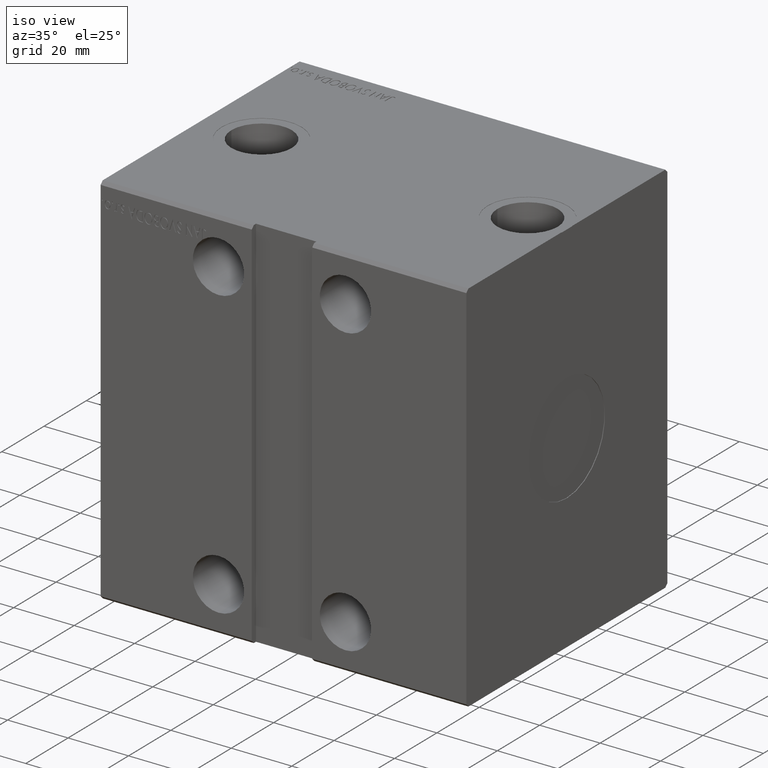
[diagram: clean part render]
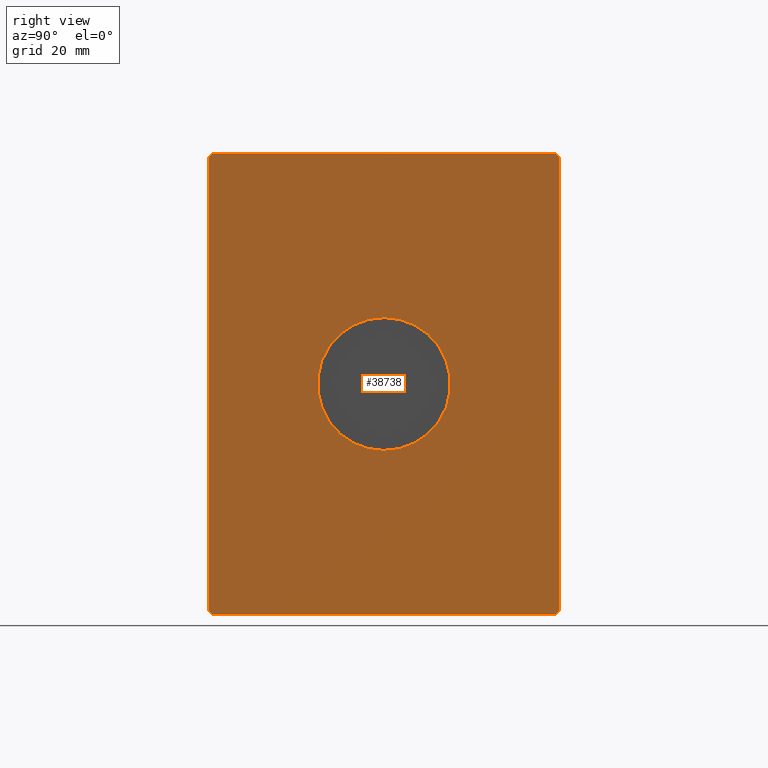
[diagram: tour spotlight — one face highlighted and labeled with its STEP entity id]
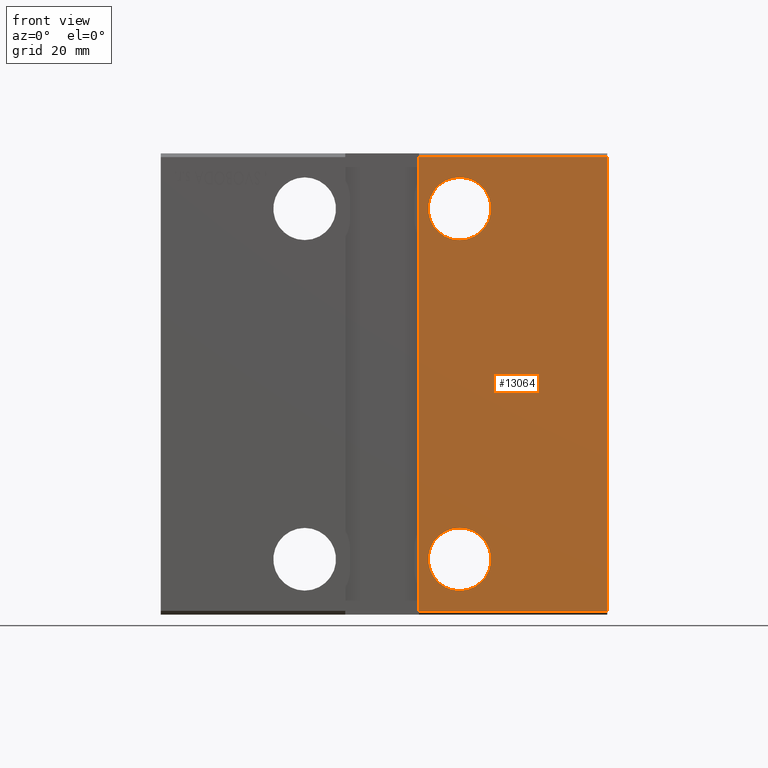
[diagram: tour spotlight — one face highlighted and labeled with its STEP entity id]
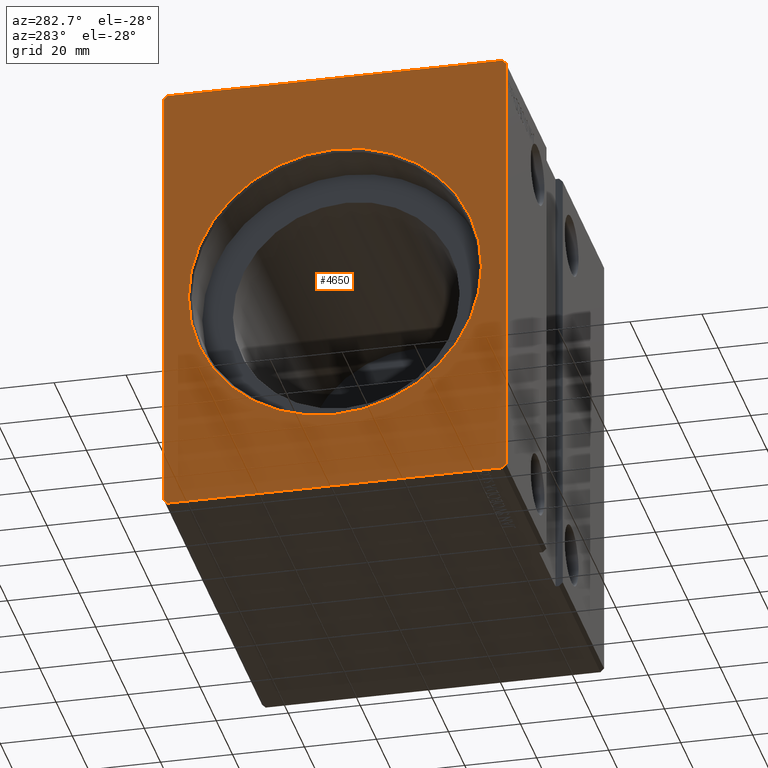
[diagram: tour spotlight — one face highlighted and labeled with its STEP entity id]
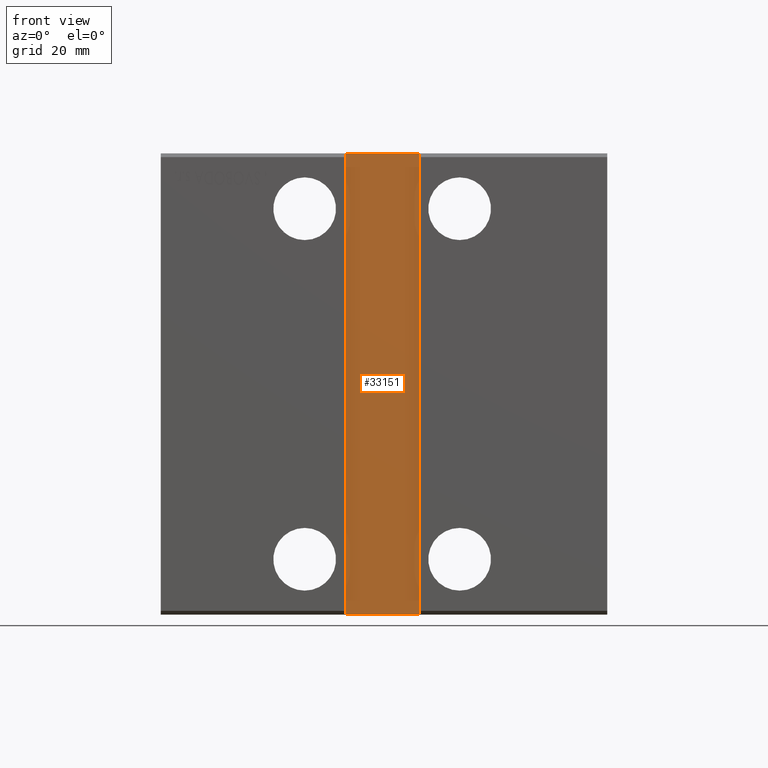
[diagram: tour spotlight — one face highlighted and labeled with its STEP entity id]
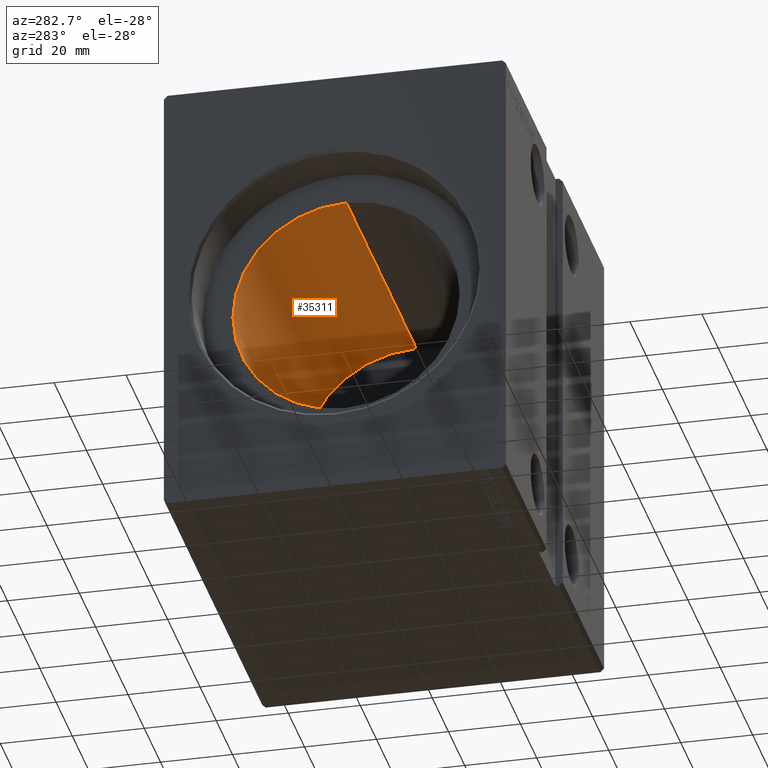
[diagram: tour spotlight — one face highlighted and labeled with its STEP entity id]
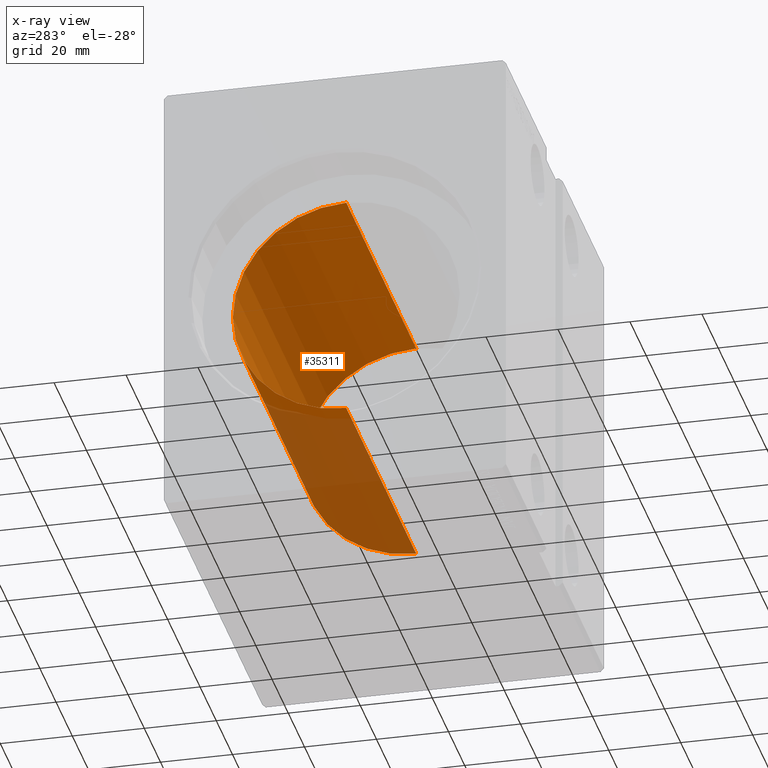
[diagram: x-ray of the same camera — body ghosted, this tour face saturated]
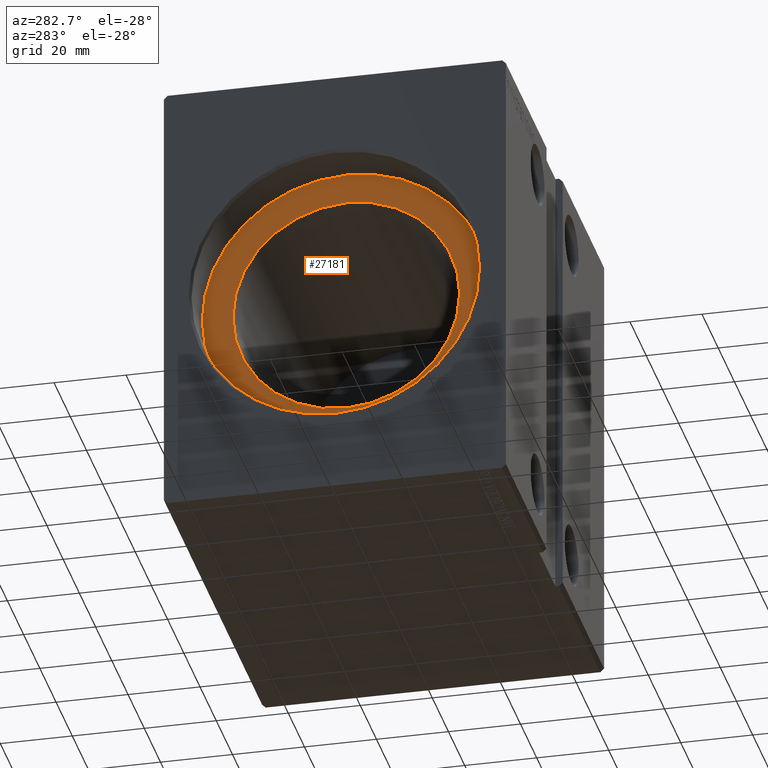
[diagram: tour spotlight — one face highlighted and labeled with its STEP entity id]
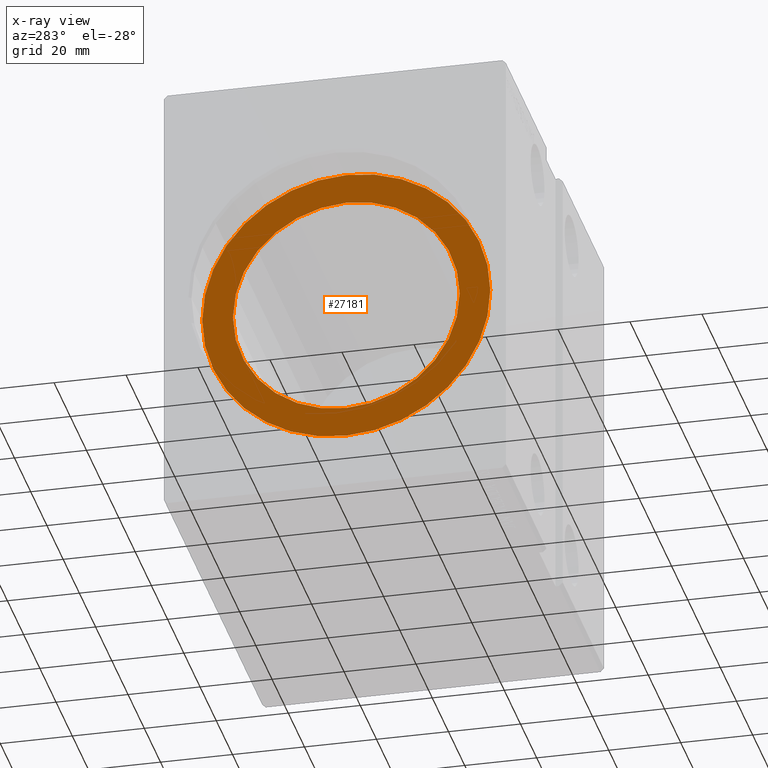
[diagram: x-ray of the same camera — body ghosted, this tour face saturated]
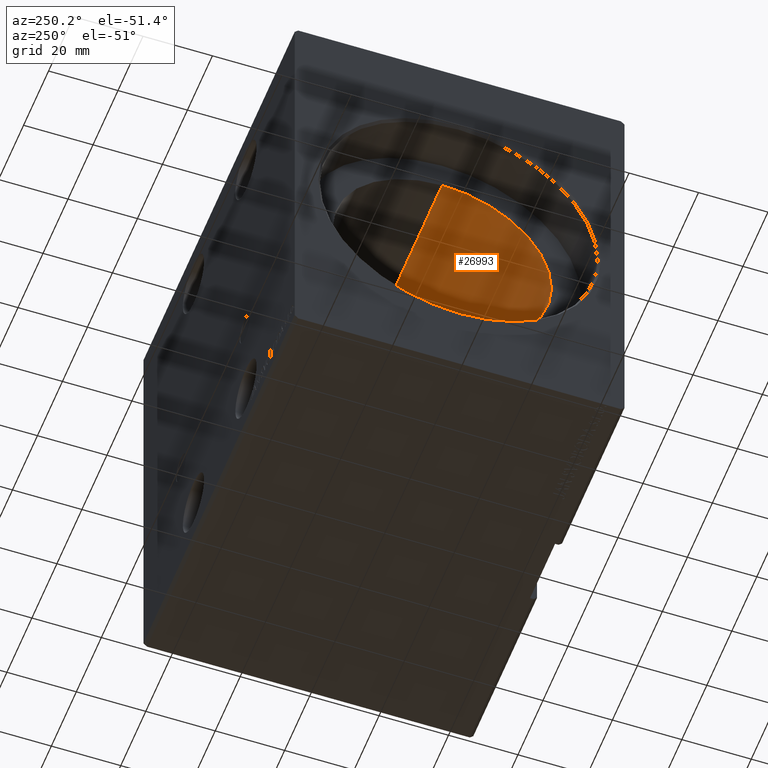
[diagram: tour spotlight — one face highlighted and labeled with its STEP entity id]
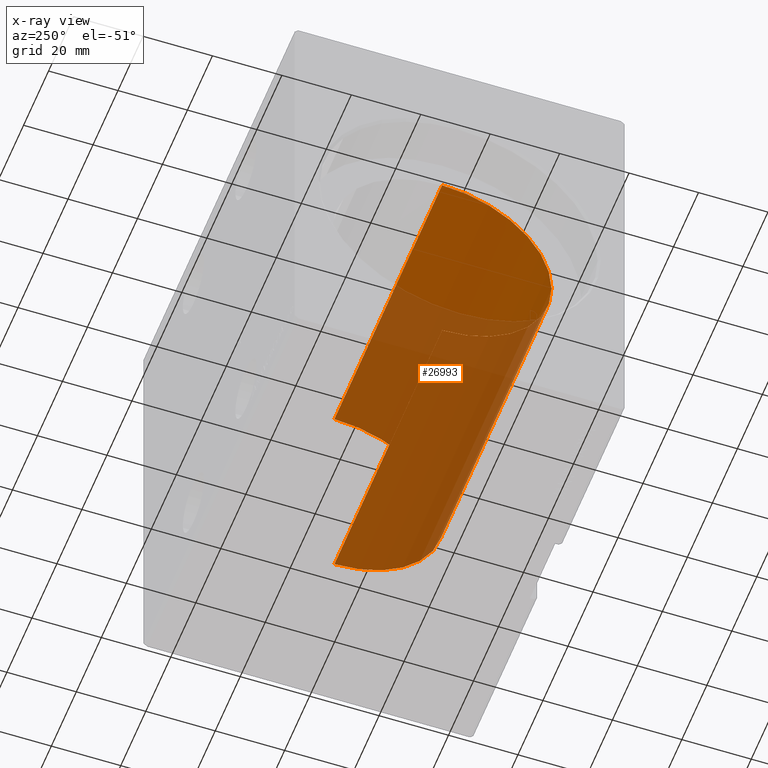
[diagram: x-ray of the same camera — body ghosted, this tour face saturated]
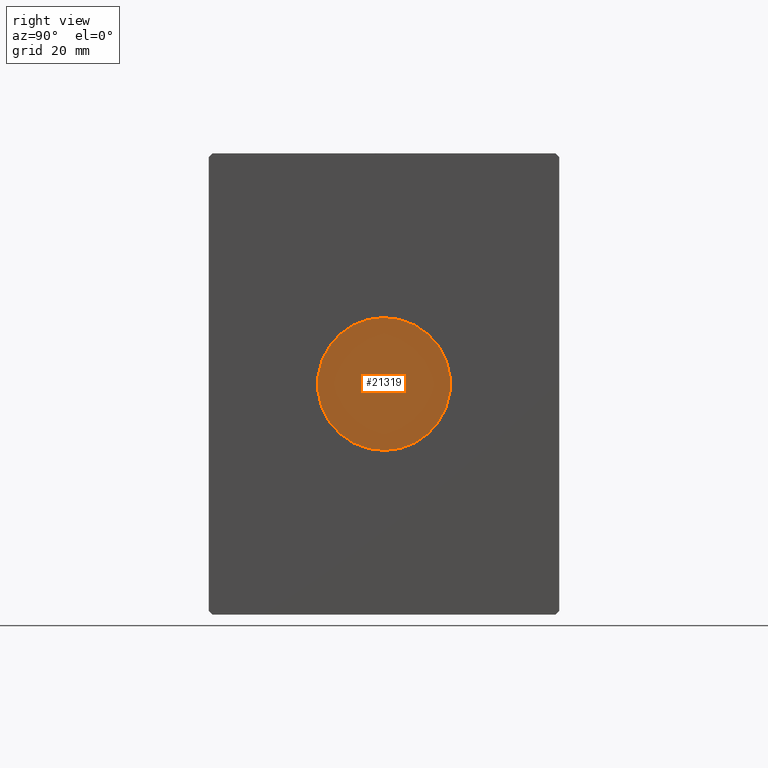
[diagram: tour spotlight — one face highlighted and labeled with its STEP entity id]
A machine part: a face-by-face anatomy tour. The part has 804 B-rep faces; the first image is the clean iso view, then the 8 largest visible faces are spotlighted one at a time (largest first), each with its STEP entity span.

Face 1 — right view, entity #38738. In plain terms, the highlighted planar face has unit normal (1, 0, 0).
Definition (entity closure, byte-faithful):
#110 = CARTESIAN_POINT ( 'NONE',  ( 121.0000000000000000, -46.50000000000001421, 62.49999999999997868 ) ) ;
#1026 = DIRECTION ( 'NONE',  ( 0.000000000000000000, 0.000000000000000000, -1.000000000000000000 ) ) ;
#1086 = DIRECTION ( 'NONE',  ( 0.000000000000000000, -1.000000000000000000, -7.461176240760460157E-17 ) ) ;
#1283 = CARTESIAN_POINT ( 'NONE',  ( 121.0000000000000000, 47.50000000000001421, -61.50000000000001421 ) ) ;
#1335 = VECTOR ( 'NONE', #30555, 1000.000000000000000 ) ;
#1590 = CARTESIAN_POINT ( 'NONE',  ( 121.0000000000000000, 2.561737691489917257, 62.49999999999998579 ) ) ;
#1706 = DIRECTION ( 'NONE',  ( 0.000000000000000000, 0.7071067811865574537, 0.7071067811865376918 ) ) ;
#2296 = VECTOR ( 'NONE', #6655, 1000.000000000000000 ) ;
#2297 = ORIENTED_EDGE ( 'NONE', *, *, #19777, .F. ) ;
#2903 = CIRCLE ( 'NONE', #40918, 18.00000000000000000 ) ;
#3867 = CARTESIAN_POINT ( 'NONE',  ( 121.0000000000000000, 46.50000000000000000, 62.49999999999998579 ) ) ;
#3918 = DIRECTION ( 'NONE',  ( 0.000000000000000000, -0.7071067811865474617, 0.7071067811865474617 ) ) ;
#4245 = LINE ( 'NONE', #25784, #21294 ) ;
#5111 = CARTESIAN_POINT ( 'NONE',  ( 121.0000000000000000, 0.000000000000000000, 0.000000000000000000 ) ) ;
#5454 = VERTEX_POINT ( 'NONE', #16405 ) ;
#5663 = EDGE_LOOP ( 'NONE', ( #40835, #22768, #2297, #34843, #36093, #14464, #9597, #36715, #29379, #31179, #16836, #23288 ) ) ;
#6655 = DIRECTION ( 'NONE',  ( 0.000000000000000000, -1.000000000000000000, -7.461176240760460157E-17 ) ) ;
#7667 = DIRECTION ( 'NONE',  ( 1.000000000000000000, 0.000000000000000000, 0.000000000000000000 ) ) ;
#8058 = DIRECTION ( 'NONE',  ( 1.000000000000000000, 0.000000000000000000, 0.000000000000000000 ) ) ;
#8179 = DIRECTION ( 'NONE',  ( 0.000000000000000000, -1.128275431529630729E-16, 1.000000000000000000 ) ) ;
#8548 = ORIENTED_EDGE ( 'NONE', *, *, #15593, .F. ) ;
#8646 = VERTEX_POINT ( 'NONE', #13065 ) ;
#9199 = ORIENTED_EDGE ( 'NONE', *, *, #38813, .F. ) ;
#9268 = VERTEX_POINT ( 'NONE', #27742 ) ;
#9597 = ORIENTED_EDGE ( 'NONE', *, *, #38142, .T. ) ;
#10115 = VERTEX_POINT ( 'NONE', #40345 ) ;
#10365 = CARTESIAN_POINT ( 'NONE',  ( 121.0000000000000000, -47.50000000000001421, 61.49999999999997868 ) ) ;
#10386 = CARTESIAN_POINT ( 'NONE',  ( 121.0000000000000000, -47.49999999999999289, -61.50000000000001421 ) ) ;
#10604 = VECTOR ( 'NONE', #1706, 999.9999999999998863 ) ;
#10820 = DIRECTION ( 'NONE',  ( 1.000000000000000000, 0.000000000000000000, 0.000000000000000000 ) ) ;
#11005 = VERTEX_POINT ( 'NONE', #11891 ) ;
#11891 = CARTESIAN_POINT ( 'NONE',  ( 121.0000000000000000, -47.50000000000001421, 61.49999999999997868 ) ) ;
#12000 = EDGE_CURVE ( 'NONE', #11005, #24139, #13349, .T. ) ;
#12202 = VERTEX_POINT ( 'NONE', #35606 ) ;
#12645 = DIRECTION ( 'NONE',  ( -0.000000000000000000, -0.000000000000000000, 1.000000000000000000 ) ) ;
#12847 = VECTOR ( 'NONE', #3918, 1000.000000000000114 ) ;
#12878 = AXIS2_PLACEMENT_3D ( 'NONE', #5111, #7667, #34427 ) ;
#13049 = CARTESIAN_POINT ( 'NONE',  ( 121.0000000000000000, -46.50000000000000000, -62.50000000000001421 ) ) ;
#13065 = CARTESIAN_POINT ( 'NONE',  ( 121.0000000000000000, -2.561737691489925695, 62.49999999999998579 ) ) ;
#13164 = LINE ( 'NONE', #10386, #39203 ) ;
#13349 = LINE ( 'NONE', #10365, #33178 ) ;
#13938 = LINE ( 'NONE', #28776, #18918 ) ;
#14464 = ORIENTED_EDGE ( 'NONE', *, *, #12000, .T. ) ;
#14502 = CARTESIAN_POINT ( 'NONE',  ( 121.0000000000000000, 47.50000000000000000, 61.49999999999998579 ) ) ;
#15307 = EDGE_CURVE ( 'NONE', #10115, #15404, #33512, .T. ) ;
#15404 = VERTEX_POINT ( 'NONE', #28798 ) ;
#15593 = EDGE_CURVE ( 'NONE', #9268, #5454, #40016, .T. ) ;
#16405 = CARTESIAN_POINT ( 'NONE',  ( 121.0000000000000000, 0.000000000000000000, -18.00000000000000000 ) ) ;
#16836 = ORIENTED_EDGE ( 'NONE', *, *, #18162, .T. ) ;
#16935 = EDGE_CURVE ( 'NONE', #10115, #24625, #13938, .T. ) ;
#18033 = CARTESIAN_POINT ( 'NONE',  ( 121.0000000000000000, 0.000000000000000000, 0.000000000000000000 ) ) ;
#18162 = EDGE_CURVE ( 'NONE', #21937, #12202, #20062, .T. ) ;
#18918 = VECTOR ( 'NONE', #12645, 1000.000000000000000 ) ;
#19127 = VERTEX_POINT ( 'NONE', #13049 ) ;
#19741 = CARTESIAN_POINT ( 'NONE',  ( 121.0000000000000000, 0.000000000000000000, 0.000000000000000000 ) ) ;
#19777 = EDGE_CURVE ( 'NONE', #8646, #15404, #36281, .T. ) ;
#20012 = LINE ( 'NONE', #3867, #2296 ) ;
#20062 = LINE ( 'NONE', #25823, #12847 ) ;
#20128 = CARTESIAN_POINT ( 'NONE',  ( 121.0000000000000000, -2.561737691489925695, 62.39999999999998437 ) ) ;
#20761 = EDGE_CURVE ( 'NONE', #8646, #26437, #25139, .T. ) ;
#21178 = CARTESIAN_POINT ( 'NONE',  ( 121.0000000000000000, 0.000000000000000000, 62.39999999999998437 ) ) ;
#21294 = VECTOR ( 'NONE', #38755, 1000.000000000000000 ) ;
#21937 = VERTEX_POINT ( 'NONE', #14502 ) ;
#22768 = ORIENTED_EDGE ( 'NONE', *, *, #15307, .T. ) ;
#23288 = ORIENTED_EDGE ( 'NONE', *, *, #41961, .T. ) ;
#24053 = CARTESIAN_POINT ( 'NONE',  ( 121.0000000000000000, -47.49999999999999289, -61.50000000000001421 ) ) ;
#24139 = VERTEX_POINT ( 'NONE', #24053 ) ;
#24625 = VERTEX_POINT ( 'NONE', #1590 ) ;
#25139 = LINE ( 'NONE', #38111, #34620 ) ;
#25784 = CARTESIAN_POINT ( 'NONE',  ( 121.0000000000000000, -46.50000000000000000, -62.50000000000001421 ) ) ;
#25823 = CARTESIAN_POINT ( 'NONE',  ( 121.0000000000000000, 47.50000000000000000, 61.49999999999998579 ) ) ;
#26437 = VERTEX_POINT ( 'NONE', #110 ) ;
#26529 = FACE_BOUND ( 'NONE', #31367, .T. ) ;
#27069 = LINE ( 'NONE', #30898, #42008 ) ;
#27742 = CARTESIAN_POINT ( 'NONE',  ( 121.0000000000000000, 2.204364238465235428E-15, 18.00000000000000000 ) ) ;
#28352 = CARTESIAN_POINT ( 'NONE',  ( 121.0000000000000000, -46.50000000000001421, 62.49999999999997868 ) ) ;
#28473 = VECTOR ( 'NONE', #40519, 1000.000000000000000 ) ;
#28527 = EDGE_CURVE ( 'NONE', #33351, #21937, #27069, .T. ) ;
#28776 = CARTESIAN_POINT ( 'NONE',  ( 121.0000000000000000, 2.561737691489917257, 62.39999999999998437 ) ) ;
#28798 = CARTESIAN_POINT ( 'NONE',  ( 121.0000000000000000, -2.561737691489925695, 62.39999999999998437 ) ) ;
#29379 = ORIENTED_EDGE ( 'NONE', *, *, #33386, .T. ) ;
#29647 = CARTESIAN_POINT ( 'NONE',  ( 121.0000000000000000, 46.50000000000000000, -62.50000000000000000 ) ) ;
#30555 = DIRECTION ( 'NONE',  ( 0.000000000000000000, 0.000000000000000000, -1.000000000000000000 ) ) ;
#30898 = CARTESIAN_POINT ( 'NONE',  ( 121.0000000000000000, 47.50000000000001421, -61.50000000000001421 ) ) ;
#30993 = DIRECTION ( 'NONE',  ( 0.000000000000000000, 0.000000000000000000, -1.000000000000000000 ) ) ;
#31179 = ORIENTED_EDGE ( 'NONE', *, *, #28527, .T. ) ;
#31367 = EDGE_LOOP ( 'NONE', ( #9199, #8548 ) ) ;
#31778 = VERTEX_POINT ( 'NONE', #29647 ) ;
#33178 = VECTOR ( 'NONE', #41659, 1000.000000000000000 ) ;
#33351 = VERTEX_POINT ( 'NONE', #1283 ) ;
#33386 = EDGE_CURVE ( 'NONE', #31778, #33351, #40174, .T. ) ;
#33512 = LINE ( 'NONE', #21178, #28473 ) ;
#34427 = DIRECTION ( 'NONE',  ( 0.000000000000000000, 0.000000000000000000, -1.000000000000000000 ) ) ;
#34620 = VECTOR ( 'NONE', #1086, 1000.000000000000000 ) ;
#34843 = ORIENTED_EDGE ( 'NONE', *, *, #20761, .T. ) ;
#35606 = CARTESIAN_POINT ( 'NONE',  ( 121.0000000000000000, 46.50000000000000000, 62.49999999999998579 ) ) ;
#35893 = FACE_OUTER_BOUND ( 'NONE', #5663, .T. ) ;
#36093 = ORIENTED_EDGE ( 'NONE', *, *, #36622, .T. ) ;
#36281 = LINE ( 'NONE', #20128, #1335 ) ;
#36514 = DIRECTION ( 'NONE',  ( 0.000000000000000000, 0.7071067811865451302, -0.7071067811865500152 ) ) ;
#36622 = EDGE_CURVE ( 'NONE', #26437, #11005, #41932, .T. ) ;
#36715 = ORIENTED_EDGE ( 'NONE', *, *, #41324, .T. ) ;
#36983 = CARTESIAN_POINT ( 'NONE',  ( 121.0000000000000000, 46.50000000000000000, -62.50000000000000000 ) ) ;
#37831 = VECTOR ( 'NONE', #41318, 1000.000000000000114 ) ;
#38111 = CARTESIAN_POINT ( 'NONE',  ( 121.0000000000000000, 46.50000000000000000, 62.49999999999998579 ) ) ;
#38142 = EDGE_CURVE ( 'NONE', #24139, #19127, #13164, .T. ) ;
#38738 = ADVANCED_FACE ( 'NONE', ( #26529, #35893 ), #39504, .T. ) ;
#38755 = DIRECTION ( 'NONE',  ( 0.000000000000000000, 1.000000000000000000, 1.492235248152092278E-16 ) ) ;
#38813 = EDGE_CURVE ( 'NONE', #5454, #9268, #2903, .T. ) ;
#39203 = VECTOR ( 'NONE', #36514, 1000.000000000000114 ) ;
#39504 = PLANE ( 'NONE',  #41574 ) ;
#40016 = CIRCLE ( 'NONE', #12878, 18.00000000000000000 ) ;
#40174 = LINE ( 'NONE', #36983, #10604 ) ;
#40345 = CARTESIAN_POINT ( 'NONE',  ( 121.0000000000000000, 2.561737691489917257, 62.39999999999998437 ) ) ;
#40519 = DIRECTION ( 'NONE',  ( 0.000000000000000000, -1.000000000000000000, 0.000000000000000000 ) ) ;
#40835 = ORIENTED_EDGE ( 'NONE', *, *, #16935, .F. ) ;
#40918 = AXIS2_PLACEMENT_3D ( 'NONE', #18033, #8058, #30993 ) ;
#41318 = DIRECTION ( 'NONE',  ( 0.000000000000000000, -0.7071067811865474617, -0.7071067811865474617 ) ) ;
#41324 = EDGE_CURVE ( 'NONE', #19127, #31778, #4245, .T. ) ;
#41574 = AXIS2_PLACEMENT_3D ( 'NONE', #19741, #10820, #1026 ) ;
#41659 = DIRECTION ( 'NONE',  ( 0.000000000000000000, 1.692413147294445970E-16, -1.000000000000000000 ) ) ;
#41932 = LINE ( 'NONE', #28352, #37831 ) ;
#41961 = EDGE_CURVE ( 'NONE', #12202, #24625, #20012, .T. ) ;
#42008 = VECTOR ( 'NONE', #8179, 1000.000000000000000 ) ;

Face 2 — front view, entity #13064. In plain terms, the highlighted planar face has unit normal (-0, 1, 0).
Definition (entity closure, byte-faithful):
#480 = AXIS2_PLACEMENT_3D ( 'NONE', #9188, #32129, #6418 ) ;
#1773 = ORIENTED_EDGE ( 'NONE', *, *, #19595, .T. ) ;
#2913 = CARTESIAN_POINT ( 'NONE',  ( 81.00000000000000000, -47.50000000000002132, 47.49999999999999289 ) ) ;
#5350 = DIRECTION ( 'NONE',  ( 0.000000000000000000, 0.000000000000000000, 1.000000000000000000 ) ) ;
#5605 = VERTEX_POINT ( 'NONE', #29971 ) ;
#5903 = DIRECTION ( 'NONE',  ( 0.000000000000000000, -1.000000000000000000, -1.692413147294446216E-16 ) ) ;
#6103 = CARTESIAN_POINT ( 'NONE',  ( 81.00000000000001421, -47.50000000000000711, -47.50000000000000711 ) ) ;
#6415 = EDGE_CURVE ( 'NONE', #6445, #38435, #21503, .T. ) ;
#6418 = DIRECTION ( 'NONE',  ( 0.000000000000000000, 0.000000000000000000, 1.000000000000000000 ) ) ;
#6445 = VERTEX_POINT ( 'NONE', #15782 ) ;
#7589 = EDGE_CURVE ( 'NONE', #38435, #6445, #22879, .T. ) ;
#7661 = ORIENTED_EDGE ( 'NONE', *, *, #7589, .T. ) ;
#8477 = ORIENTED_EDGE ( 'NONE', *, *, #6415, .T. ) ;
#9188 = CARTESIAN_POINT ( 'NONE',  ( 81.00000000000001421, -47.50000000000000711, -47.50000000000000711 ) ) ;
#9744 = DIRECTION ( 'NONE',  ( -1.000000000000000000, -0.000000000000000000, -0.000000000000000000 ) ) ;
#10135 = AXIS2_PLACEMENT_3D ( 'NONE', #24358, #36891, #37328 ) ;
#10365 = CARTESIAN_POINT ( 'NONE',  ( 121.0000000000000000, -47.50000000000001421, 61.49999999999997868 ) ) ;
#10770 = AXIS2_PLACEMENT_3D ( 'NONE', #2913, #5903, #31409 ) ;
#11005 = VERTEX_POINT ( 'NONE', #11891 ) ;
#11243 = DIRECTION ( 'NONE',  ( -1.110223024625156540E-16, -0.000000000000000000, 1.000000000000000000 ) ) ;
#11891 = CARTESIAN_POINT ( 'NONE',  ( 121.0000000000000000, -47.50000000000001421, 61.49999999999997868 ) ) ;
#12000 = EDGE_CURVE ( 'NONE', #11005, #24139, #13349, .T. ) ;
#12151 = VECTOR ( 'NONE', #11243, 1000.000000000000000 ) ;
#12529 = CARTESIAN_POINT ( 'NONE',  ( 121.0000000000000000, -47.50000000000001421, 61.49999999999997868 ) ) ;
#12757 = EDGE_CURVE ( 'NONE', #33070, #5605, #40336, .T. ) ;
#12951 = EDGE_CURVE ( 'NONE', #39564, #29118, #29080, .T. ) ;
#13064 = ADVANCED_FACE ( 'NONE', ( #24133, #23927, #40717 ), #30301, .F. ) ;
#13136 = CIRCLE ( 'NONE', #24664, 8.500000000000000000 ) ;
#13349 = LINE ( 'NONE', #10365, #33178 ) ;
#13426 = EDGE_LOOP ( 'NONE', ( #7661, #8477 ) ) ;
#14196 = DIRECTION ( 'NONE',  ( -1.000000000000000000, -0.000000000000000000, -0.000000000000000000 ) ) ;
#14534 = CARTESIAN_POINT ( 'NONE',  ( 81.00000000000001421, -47.50000000000000711, -56.00000000000001421 ) ) ;
#14623 = CARTESIAN_POINT ( 'NONE',  ( 121.0000000000000000, -47.49999999999999289, -61.50000000000001421 ) ) ;
#15782 = CARTESIAN_POINT ( 'NONE',  ( 81.00000000000001421, -47.50000000000000711, -39.00000000000000000 ) ) ;
#19057 = DIRECTION ( 'NONE',  ( -0.000000000000000000, 1.000000000000000000, 1.692413147294446216E-16 ) ) ;
#19103 = LINE ( 'NONE', #12529, #25740 ) ;
#19526 = ORIENTED_EDGE ( 'NONE', *, *, #12951, .F. ) ;
#19595 = EDGE_CURVE ( 'NONE', #11005, #5605, #19103, .T. ) ;
#20279 = CARTESIAN_POINT ( 'NONE',  ( 81.00000000000000000, -47.50000000000002132, 38.99999999999999289 ) ) ;
#20436 = CARTESIAN_POINT ( 'NONE',  ( 81.00000000000000000, -47.50000000000002132, 47.49999999999999289 ) ) ;
#21503 = CIRCLE ( 'NONE', #480, 8.500000000000007105 ) ;
#22336 = CARTESIAN_POINT ( 'NONE',  ( 70.00000000000001421, -47.50000000000000711, -61.50000000000002132 ) ) ;
#22879 = CIRCLE ( 'NONE', #41221, 8.500000000000007105 ) ;
#23139 = CARTESIAN_POINT ( 'NONE',  ( 81.00000000000000000, -47.50000000000002132, 55.99999999999999289 ) ) ;
#23927 = FACE_OUTER_BOUND ( 'NONE', #37023, .T. ) ;
#24053 = CARTESIAN_POINT ( 'NONE',  ( 121.0000000000000000, -47.49999999999999289, -61.50000000000001421 ) ) ;
#24133 = FACE_BOUND ( 'NONE', #13426, .T. ) ;
#24139 = VERTEX_POINT ( 'NONE', #24053 ) ;
#24358 = CARTESIAN_POINT ( 'NONE',  ( 121.0000000000000000, -47.50000000000001421, 61.49999999999997868 ) ) ;
#24664 = AXIS2_PLACEMENT_3D ( 'NONE', #20436, #33404, #5350 ) ;
#25740 = VECTOR ( 'NONE', #9744, 1000.000000000000000 ) ;
#26926 = LINE ( 'NONE', #14623, #27744 ) ;
#27696 = ORIENTED_EDGE ( 'NONE', *, *, #12000, .F. ) ;
#27744 = VECTOR ( 'NONE', #14196, 1000.000000000000000 ) ;
#28313 = EDGE_CURVE ( 'NONE', #24139, #33070, #26926, .T. ) ;
#29080 = CIRCLE ( 'NONE', #10770, 8.500000000000000000 ) ;
#29118 = VERTEX_POINT ( 'NONE', #20279 ) ;
#29971 = CARTESIAN_POINT ( 'NONE',  ( 70.00000000000000000, -47.50000000000000711, 61.49999999999998579 ) ) ;
#30301 = PLANE ( 'NONE',  #10135 ) ;
#31409 = DIRECTION ( 'NONE',  ( 0.000000000000000000, 0.000000000000000000, 1.000000000000000000 ) ) ;
#32129 = DIRECTION ( 'NONE',  ( -0.000000000000000000, 1.000000000000000000, 1.692413147294446216E-16 ) ) ;
#32359 = ORIENTED_EDGE ( 'NONE', *, *, #28313, .F. ) ;
#32362 = EDGE_LOOP ( 'NONE', ( #39692, #19526 ) ) ;
#33070 = VERTEX_POINT ( 'NONE', #22336 ) ;
#33178 = VECTOR ( 'NONE', #41659, 1000.000000000000000 ) ;
#33404 = DIRECTION ( 'NONE',  ( 0.000000000000000000, -1.000000000000000000, -1.692413147294446216E-16 ) ) ;
#33615 = ORIENTED_EDGE ( 'NONE', *, *, #12757, .F. ) ;
#36891 = DIRECTION ( 'NONE',  ( -0.000000000000000000, 1.000000000000000000, 1.692413147294446216E-16 ) ) ;
#37023 = EDGE_LOOP ( 'NONE', ( #1773, #33615, #32359, #27696 ) ) ;
#37160 = CARTESIAN_POINT ( 'NONE',  ( 70.00000000000000000, -47.50000000000000711, 62.49999999999997868 ) ) ;
#37328 = DIRECTION ( 'NONE',  ( 0.000000000000000000, -1.692413147294446216E-16, 1.000000000000000000 ) ) ;
#38435 = VERTEX_POINT ( 'NONE', #14534 ) ;
#39009 = DIRECTION ( 'NONE',  ( 0.000000000000000000, 0.000000000000000000, 1.000000000000000000 ) ) ;
#39564 = VERTEX_POINT ( 'NONE', #23139 ) ;
#39692 = ORIENTED_EDGE ( 'NONE', *, *, #40091, .F. ) ;
#40091 = EDGE_CURVE ( 'NONE', #29118, #39564, #13136, .T. ) ;
#40336 = LINE ( 'NONE', #37160, #12151 ) ;
#40717 = FACE_BOUND ( 'NONE', #32362, .T. ) ;
#41221 = AXIS2_PLACEMENT_3D ( 'NONE', #6103, #19057, #39009 ) ;
#41659 = DIRECTION ( 'NONE',  ( 0.000000000000000000, 1.692413147294445970E-16, -1.000000000000000000 ) ) ;

Face 3 — auxiliary view, entity #4650. In plain terms, the highlighted planar face has unit normal (1, 0, 0).
Definition (entity closure, byte-faithful):
#330 = DIRECTION ( 'NONE',  ( 0.000000000000000000, 0.000000000000000000, -1.000000000000000000 ) ) ;
#527 = CARTESIAN_POINT ( 'NONE',  ( 0.000000000000000000, -46.50000000000001421, 62.49999999999997868 ) ) ;
#744 = DIRECTION ( 'NONE',  ( 1.000000000000000000, 0.000000000000000000, 0.000000000000000000 ) ) ;
#1265 = CARTESIAN_POINT ( 'NONE',  ( 0.000000000000000000, -47.49999999999999289, -61.50000000000001421 ) ) ;
#1851 = EDGE_CURVE ( 'NONE', #39531, #21292, #5405, .T. ) ;
#1878 = DIRECTION ( 'NONE',  ( 0.000000000000000000, 0.7071067811865451302, -0.7071067811865500152 ) ) ;
#2207 = CARTESIAN_POINT ( 'NONE',  ( 0.000000000000000000, 46.50000000000000000, -62.50000000000000000 ) ) ;
#2349 = ORIENTED_EDGE ( 'NONE', *, *, #3606, .T. ) ;
#2646 = CIRCLE ( 'NONE', #29773, 40.70000000000001705 ) ;
#3503 = ORIENTED_EDGE ( 'NONE', *, *, #11181, .F. ) ;
#3606 = EDGE_CURVE ( 'NONE', #30005, #12154, #36352, .T. ) ;
#3752 = DIRECTION ( 'NONE',  ( 0.000000000000000000, -0.7071067811865474617, -0.7071067811865474617 ) ) ;
#4341 = EDGE_CURVE ( 'NONE', #39943, #24356, #8447, .T. ) ;
#4457 = DIRECTION ( 'NONE',  ( 0.000000000000000000, -0.7071067811865474617, 0.7071067811865474617 ) ) ;
#4650 = ADVANCED_FACE ( 'NONE', ( #40063, #17318 ), #29858, .F. ) ;
#5025 = VECTOR ( 'NONE', #3752, 1000.000000000000114 ) ;
#5405 = LINE ( 'NONE', #2207, #7155 ) ;
#5862 = AXIS2_PLACEMENT_3D ( 'NONE', #14608, #34572, #17999 ) ;
#6224 = ORIENTED_EDGE ( 'NONE', *, *, #41285, .F. ) ;
#6928 = DIRECTION ( 'NONE',  ( 1.000000000000000000, 0.000000000000000000, 0.000000000000000000 ) ) ;
#7155 = VECTOR ( 'NONE', #15183, 999.9999999999998863 ) ;
#7601 = LINE ( 'NONE', #11642, #31797 ) ;
#7835 = LINE ( 'NONE', #20785, #24895 ) ;
#8282 = DIRECTION ( 'NONE',  ( 0.000000000000000000, -1.000000000000000000, -7.461176240760460157E-17 ) ) ;
#8447 = LINE ( 'NONE', #14617, #15393 ) ;
#9258 = AXIS2_PLACEMENT_3D ( 'NONE', #30275, #744, #13721 ) ;
#11181 = EDGE_CURVE ( 'NONE', #21292, #32029, #7601, .T. ) ;
#11642 = CARTESIAN_POINT ( 'NONE',  ( 0.000000000000000000, 47.50000000000001421, -61.50000000000001421 ) ) ;
#12154 = VERTEX_POINT ( 'NONE', #32014 ) ;
#12204 = CARTESIAN_POINT ( 'NONE',  ( 0.000000000000000000, -46.50000000000000000, -62.50000000000001421 ) ) ;
#12289 = EDGE_CURVE ( 'NONE', #12154, #30005, #2646, .T. ) ;
#13255 = VERTEX_POINT ( 'NONE', #38980 ) ;
#13256 = CARTESIAN_POINT ( 'NONE',  ( 0.000000000000000000, 47.50000000000000000, 61.49999999999998579 ) ) ;
#13721 = DIRECTION ( 'NONE',  ( 0.000000000000000000, 0.000000000000000000, -1.000000000000000000 ) ) ;
#13871 = CARTESIAN_POINT ( 'NONE',  ( 0.000000000000000000, 4.984312472529728892E-15, -40.70000000000001705 ) ) ;
#13942 = ORIENTED_EDGE ( 'NONE', *, *, #4341, .F. ) ;
#14608 = CARTESIAN_POINT ( 'NONE',  ( 0.000000000000000000, 0.000000000000000000, 0.000000000000000000 ) ) ;
#14617 = CARTESIAN_POINT ( 'NONE',  ( 0.000000000000000000, -47.50000000000001421, 61.49999999999997868 ) ) ;
#14941 = EDGE_LOOP ( 'NONE', ( #6224, #3503, #15402, #38270, #17006, #13942, #17883, #41230 ) ) ;
#15183 = DIRECTION ( 'NONE',  ( 0.000000000000000000, 0.7071067811865574537, 0.7071067811865376918 ) ) ;
#15393 = VECTOR ( 'NONE', #40529, 1000.000000000000000 ) ;
#15402 = ORIENTED_EDGE ( 'NONE', *, *, #1851, .F. ) ;
#15872 = VECTOR ( 'NONE', #4457, 1000.000000000000114 ) ;
#16443 = LINE ( 'NONE', #35762, #15872 ) ;
#17006 = ORIENTED_EDGE ( 'NONE', *, *, #34771, .F. ) ;
#17318 = FACE_OUTER_BOUND ( 'NONE', #14941, .T. ) ;
#17356 = LINE ( 'NONE', #33723, #5025 ) ;
#17664 = VECTOR ( 'NONE', #27910, 1000.000000000000000 ) ;
#17883 = ORIENTED_EDGE ( 'NONE', *, *, #23490, .F. ) ;
#17999 = DIRECTION ( 'NONE',  ( 0.000000000000000000, 0.000000000000000000, -1.000000000000000000 ) ) ;
#20301 = VECTOR ( 'NONE', #8282, 1000.000000000000000 ) ;
#20649 = EDGE_CURVE ( 'NONE', #21741, #39531, #37483, .T. ) ;
#20785 = CARTESIAN_POINT ( 'NONE',  ( 0.000000000000000000, -47.49999999999999289, -61.50000000000001421 ) ) ;
#21292 = VERTEX_POINT ( 'NONE', #22711 ) ;
#21741 = VERTEX_POINT ( 'NONE', #12204 ) ;
#22136 = ORIENTED_EDGE ( 'NONE', *, *, #12289, .T. ) ;
#22711 = CARTESIAN_POINT ( 'NONE',  ( 0.000000000000000000, 47.50000000000001421, -61.50000000000001421 ) ) ;
#23490 = EDGE_CURVE ( 'NONE', #29064, #39943, #17356, .T. ) ;
#24356 = VERTEX_POINT ( 'NONE', #1265 ) ;
#24895 = VECTOR ( 'NONE', #1878, 1000.000000000000114 ) ;
#26537 = CARTESIAN_POINT ( 'NONE',  ( 0.000000000000000000, 46.50000000000000000, -62.50000000000000000 ) ) ;
#27487 = CARTESIAN_POINT ( 'NONE',  ( 0.000000000000000000, -46.50000000000000000, -62.50000000000001421 ) ) ;
#27910 = DIRECTION ( 'NONE',  ( 0.000000000000000000, 1.000000000000000000, 1.492235248152092278E-16 ) ) ;
#28723 = EDGE_CURVE ( 'NONE', #13255, #29064, #34400, .T. ) ;
#29064 = VERTEX_POINT ( 'NONE', #527 ) ;
#29773 = AXIS2_PLACEMENT_3D ( 'NONE', #41976, #6928, #330 ) ;
#29858 = PLANE ( 'NONE',  #9258 ) ;
#30005 = VERTEX_POINT ( 'NONE', #13871 ) ;
#30275 = CARTESIAN_POINT ( 'NONE',  ( 0.000000000000000000, 0.000000000000000000, 0.000000000000000000 ) ) ;
#31797 = VECTOR ( 'NONE', #39884, 1000.000000000000000 ) ;
#32014 = CARTESIAN_POINT ( 'NONE',  ( 0.000000000000000000, 0.000000000000000000, 40.70000000000001705 ) ) ;
#32029 = VERTEX_POINT ( 'NONE', #13256 ) ;
#33723 = CARTESIAN_POINT ( 'NONE',  ( 0.000000000000000000, -46.50000000000001421, 62.49999999999997868 ) ) ;
#34400 = LINE ( 'NONE', #37592, #20301 ) ;
#34572 = DIRECTION ( 'NONE',  ( 1.000000000000000000, 0.000000000000000000, 0.000000000000000000 ) ) ;
#34771 = EDGE_CURVE ( 'NONE', #24356, #21741, #7835, .T. ) ;
#35762 = CARTESIAN_POINT ( 'NONE',  ( 0.000000000000000000, 47.50000000000000000, 61.49999999999998579 ) ) ;
#36352 = CIRCLE ( 'NONE', #5862, 40.70000000000001705 ) ;
#37483 = LINE ( 'NONE', #27487, #17664 ) ;
#37592 = CARTESIAN_POINT ( 'NONE',  ( 0.000000000000000000, 46.50000000000000000, 62.49999999999998579 ) ) ;
#38270 = ORIENTED_EDGE ( 'NONE', *, *, #20649, .F. ) ;
#38514 = EDGE_LOOP ( 'NONE', ( #22136, #2349 ) ) ;
#38980 = CARTESIAN_POINT ( 'NONE',  ( 0.000000000000000000, 46.50000000000000000, 62.49999999999998579 ) ) ;
#39531 = VERTEX_POINT ( 'NONE', #26537 ) ;
#39884 = DIRECTION ( 'NONE',  ( 0.000000000000000000, -1.128275431529630729E-16, 1.000000000000000000 ) ) ;
#39943 = VERTEX_POINT ( 'NONE', #41292 ) ;
#40063 = FACE_BOUND ( 'NONE', #38514, .T. ) ;
#40529 = DIRECTION ( 'NONE',  ( 0.000000000000000000, 1.692413147294445970E-16, -1.000000000000000000 ) ) ;
#41230 = ORIENTED_EDGE ( 'NONE', *, *, #28723, .F. ) ;
#41285 = EDGE_CURVE ( 'NONE', #32029, #13255, #16443, .T. ) ;
#41292 = CARTESIAN_POINT ( 'NONE',  ( 0.000000000000000000, -47.50000000000001421, 61.49999999999997868 ) ) ;
#41976 = CARTESIAN_POINT ( 'NONE',  ( 0.000000000000000000, 0.000000000000000000, 0.000000000000000000 ) ) ;

Face 4 — front view, entity #33151. In plain terms, the highlighted planar face has unit normal (0, -1, 0).
Definition (entity closure, byte-faithful):
#856 = DIRECTION ( 'NONE',  ( 0.000000000000000000, -1.000000000000000000, 0.000000000000000000 ) ) ;
#1514 = CARTESIAN_POINT ( 'NONE',  ( 50.00000000000000000, -45.50000000000000711, -62.50000000000002842 ) ) ;
#3468 = LINE ( 'NONE', #16444, #11522 ) ;
#3666 = DIRECTION ( 'NONE',  ( 1.110223024625156540E-16, 0.000000000000000000, -1.000000000000000000 ) ) ;
#4048 = DIRECTION ( 'NONE',  ( 0.000000000000000000, -0.000000000000000000, -1.000000000000000000 ) ) ;
#4682 = EDGE_LOOP ( 'NONE', ( #34816, #32497, #15266, #34578 ) ) ;
#4948 = LINE ( 'NONE', #11112, #21641 ) ;
#7924 = DIRECTION ( 'NONE',  ( 1.000000000000000000, 0.000000000000000000, 0.000000000000000000 ) ) ;
#9303 = VECTOR ( 'NONE', #28676, 1000.000000000000000 ) ;
#11112 = CARTESIAN_POINT ( 'NONE',  ( 50.00000000000000000, -45.50000000000000711, -62.50000000000002842 ) ) ;
#11522 = VECTOR ( 'NONE', #3666, 1000.000000000000000 ) ;
#15266 = ORIENTED_EDGE ( 'NONE', *, *, #19212, .T. ) ;
#16444 = CARTESIAN_POINT ( 'NONE',  ( 49.99999999999998579, -45.50000000000000711, 62.49999999999997868 ) ) ;
#18273 = VERTEX_POINT ( 'NONE', #31330 ) ;
#19212 = EDGE_CURVE ( 'NONE', #18273, #20910, #3468, .T. ) ;
#19359 = FACE_OUTER_BOUND ( 'NONE', #4682, .T. ) ;
#19893 = CARTESIAN_POINT ( 'NONE',  ( 70.00000000000000000, -45.50000000000000711, 62.49999999999997868 ) ) ;
#20910 = VERTEX_POINT ( 'NONE', #1514 ) ;
#21641 = VECTOR ( 'NONE', #7924, 1000.000000000000000 ) ;
#23264 = CARTESIAN_POINT ( 'NONE',  ( 49.99999999999998579, -45.50000000000000711, 62.49999999999997868 ) ) ;
#23909 = LINE ( 'NONE', #23264, #28677 ) ;
#27771 = EDGE_CURVE ( 'NONE', #20910, #40483, #4948, .T. ) ;
#27822 = CARTESIAN_POINT ( 'NONE',  ( 70.00000000000001421, -45.50000000000000711, -62.50000000000002842 ) ) ;
#28676 = DIRECTION ( 'NONE',  ( -1.110223024625156540E-16, -0.000000000000000000, 1.000000000000000000 ) ) ;
#28677 = VECTOR ( 'NONE', #29865, 1000.000000000000000 ) ;
#29759 = PLANE ( 'NONE',  #32986 ) ;
#29865 = DIRECTION ( 'NONE',  ( -1.000000000000000000, -0.000000000000000000, -0.000000000000000000 ) ) ;
#31330 = CARTESIAN_POINT ( 'NONE',  ( 49.99999999999998579, -45.50000000000000711, 62.49999999999997868 ) ) ;
#31450 = VERTEX_POINT ( 'NONE', #35452 ) ;
#32497 = ORIENTED_EDGE ( 'NONE', *, *, #38992, .T. ) ;
#32986 = AXIS2_PLACEMENT_3D ( 'NONE', #36340, #856, #4048 ) ;
#33151 = ADVANCED_FACE ( 'NONE', ( #19359 ), #29759, .T. ) ;
#34578 = ORIENTED_EDGE ( 'NONE', *, *, #27771, .T. ) ;
#34816 = ORIENTED_EDGE ( 'NONE', *, *, #35717, .T. ) ;
#35452 = CARTESIAN_POINT ( 'NONE',  ( 70.00000000000000000, -45.50000000000000711, 62.49999999999997868 ) ) ;
#35478 = LINE ( 'NONE', #19893, #9303 ) ;
#35717 = EDGE_CURVE ( 'NONE', #40483, #31450, #35478, .T. ) ;
#36340 = CARTESIAN_POINT ( 'NONE',  ( 0.000000000000000000, -45.50000000000000711, 1.101411730778925047E-16 ) ) ;
#38992 = EDGE_CURVE ( 'NONE', #31450, #18273, #23909, .T. ) ;
#40483 = VERTEX_POINT ( 'NONE', #27822 ) ;

Face 5 — auxiliary view, entity #35311. An x-ray twin of the same camera follows (body ghosted, this face saturated) — the face is partly hidden behind the body. In plain terms, the highlighted cylindrical surface (partial cylindrical patch) has radius 31.5 mm, axis along (-1, -0, -0).
Definition (entity closure, byte-faithful):
#128 = DIRECTION ( 'NONE',  ( -1.000000000000000000, 0.000000000000000000, 0.000000000000000000 ) ) ;
#2611 = DIRECTION ( 'NONE',  ( -1.000000000000000000, -0.000000000000000000, -0.000000000000000000 ) ) ;
#2696 = CARTESIAN_POINT ( 'NONE',  ( 100.2000000000000028, 0.000000000000000000, 0.000000000000000000 ) ) ;
#3901 = DIRECTION ( 'NONE',  ( -1.000000000000000000, -0.000000000000000000, -0.000000000000000000 ) ) ;
#3902 = CIRCLE ( 'NONE', #35133, 31.50000000000000000 ) ;
#7635 = EDGE_CURVE ( 'NONE', #14622, #39551, #3902, .T. ) ;
#8825 = ORIENTED_EDGE ( 'NONE', *, *, #21299, .T. ) ;
#9313 = VERTEX_POINT ( 'NONE', #40913 ) ;
#9617 = LINE ( 'NONE', #41689, #15154 ) ;
#10610 = CARTESIAN_POINT ( 'NONE',  ( 100.2000000000000028, 3.857637417314162689E-15, -31.50000000000000000 ) ) ;
#10710 = DIRECTION ( 'NONE',  ( 0.000000000000000000, 0.000000000000000000, 1.000000000000000000 ) ) ;
#12049 = AXIS2_PLACEMENT_3D ( 'NONE', #17561, #23718, #36688 ) ;
#13339 = AXIS2_PLACEMENT_3D ( 'NONE', #23229, #3901, #10710 ) ;
#13694 = CYLINDRICAL_SURFACE ( 'NONE', #13339, 31.50000000000000000 ) ;
#14622 = VERTEX_POINT ( 'NONE', #23830 ) ;
#15029 = CARTESIAN_POINT ( 'NONE',  ( 100.2000000000000028, 0.000000000000000000, 31.50000000000000000 ) ) ;
#15154 = VECTOR ( 'NONE', #2611, 1000.000000000000000 ) ;
#15656 = VERTEX_POINT ( 'NONE', #18896 ) ;
#17323 = EDGE_LOOP ( 'NONE', ( #39139, #17963, #8825, #41352 ) ) ;
#17561 = CARTESIAN_POINT ( 'NONE',  ( 13.99999999999999822, 0.000000000000000000, 0.000000000000000000 ) ) ;
#17963 = ORIENTED_EDGE ( 'NONE', *, *, #7635, .F. ) ;
#18896 = CARTESIAN_POINT ( 'NONE',  ( 13.99999999999999822, 0.000000000000000000, 31.50000000000000000 ) ) ;
#20047 = FACE_OUTER_BOUND ( 'NONE', #17323, .T. ) ;
#21299 = EDGE_CURVE ( 'NONE', #14622, #15656, #41131, .T. ) ;
#22639 = DIRECTION ( 'NONE',  ( 0.000000000000000000, 0.000000000000000000, 1.000000000000000000 ) ) ;
#23229 = CARTESIAN_POINT ( 'NONE',  ( 100.2000000000000028, 0.000000000000000000, 0.000000000000000000 ) ) ;
#23718 = DIRECTION ( 'NONE',  ( -1.000000000000000000, 0.000000000000000000, 0.000000000000000000 ) ) ;
#23830 = CARTESIAN_POINT ( 'NONE',  ( 100.2000000000000028, 0.000000000000000000, 31.50000000000000000 ) ) ;
#24780 = DIRECTION ( 'NONE',  ( -1.000000000000000000, -0.000000000000000000, -0.000000000000000000 ) ) ;
#26243 = CIRCLE ( 'NONE', #12049, 31.50000000000000000 ) ;
#27143 = VECTOR ( 'NONE', #24780, 1000.000000000000000 ) ;
#35133 = AXIS2_PLACEMENT_3D ( 'NONE', #2696, #128, #22639 ) ;
#35311 = ADVANCED_FACE ( 'NONE', ( #20047 ), #13694, .F. ) ;
#35825 = EDGE_CURVE ( 'NONE', #15656, #9313, #26243, .T. ) ;
#36688 = DIRECTION ( 'NONE',  ( 0.000000000000000000, 0.000000000000000000, 1.000000000000000000 ) ) ;
#39139 = ORIENTED_EDGE ( 'NONE', *, *, #39209, .F. ) ;
#39209 = EDGE_CURVE ( 'NONE', #39551, #9313, #9617, .T. ) ;
#39551 = VERTEX_POINT ( 'NONE', #10610 ) ;
#40913 = CARTESIAN_POINT ( 'NONE',  ( 13.99999999999999822, 3.857637417314162689E-15, -31.50000000000000000 ) ) ;
#41131 = LINE ( 'NONE', #15029, #27143 ) ;
#41352 = ORIENTED_EDGE ( 'NONE', *, *, #35825, .T. ) ;
#41689 = CARTESIAN_POINT ( 'NONE',  ( 100.2000000000000028, 3.857637417314162689E-15, -31.50000000000000000 ) ) ;

Face 6 — auxiliary view, entity #27181. An x-ray twin of the same camera follows (body ghosted, this face saturated) — the face is partly hidden behind the body. In plain terms, the highlighted planar face has unit normal (-1, 0, 0).
Definition (entity closure, byte-faithful):
#838 = FACE_OUTER_BOUND ( 'NONE', #1298, .T. ) ;
#1069 = DIRECTION ( 'NONE',  ( -1.000000000000000000, 0.000000000000000000, 0.000000000000000000 ) ) ;
#1091 = ORIENTED_EDGE ( 'NONE', *, *, #4191, .T. ) ;
#1298 = EDGE_LOOP ( 'NONE', ( #1091, #10963 ) ) ;
#3986 = DIRECTION ( 'NONE',  ( -1.000000000000000000, 0.000000000000000000, 0.000000000000000000 ) ) ;
#4191 = EDGE_CURVE ( 'NONE', #19661, #38230, #5894, .T. ) ;
#4572 = ORIENTED_EDGE ( 'NONE', *, *, #35825, .F. ) ;
#5720 = DIRECTION ( 'NONE',  ( -1.000000000000000000, 0.000000000000000000, 0.000000000000000000 ) ) ;
#5894 = CIRCLE ( 'NONE', #12660, 40.00000000000000000 ) ;
#5940 = CIRCLE ( 'NONE', #29007, 40.00000000000000000 ) ;
#7862 = FACE_BOUND ( 'NONE', #32272, .T. ) ;
#9313 = VERTEX_POINT ( 'NONE', #40913 ) ;
#9548 = CARTESIAN_POINT ( 'NONE',  ( 14.00000000000000000, 0.000000000000000000, 40.00000000000000000 ) ) ;
#9837 = EDGE_CURVE ( 'NONE', #9313, #15656, #11431, .T. ) ;
#10963 = ORIENTED_EDGE ( 'NONE', *, *, #37898, .T. ) ;
#11431 = CIRCLE ( 'NONE', #14110, 31.50000000000000000 ) ;
#12049 = AXIS2_PLACEMENT_3D ( 'NONE', #17561, #23718, #36688 ) ;
#12660 = AXIS2_PLACEMENT_3D ( 'NONE', #37603, #5720, #25255 ) ;
#14019 = DIRECTION ( 'NONE',  ( 0.000000000000000000, 0.000000000000000000, 1.000000000000000000 ) ) ;
#14110 = AXIS2_PLACEMENT_3D ( 'NONE', #33106, #3986, #17167 ) ;
#15656 = VERTEX_POINT ( 'NONE', #18896 ) ;
#16809 = DIRECTION ( 'NONE',  ( 0.000000000000000000, 0.000000000000000000, 1.000000000000000000 ) ) ;
#17167 = DIRECTION ( 'NONE',  ( 0.000000000000000000, 0.000000000000000000, 1.000000000000000000 ) ) ;
#17561 = CARTESIAN_POINT ( 'NONE',  ( 13.99999999999999822, 0.000000000000000000, 0.000000000000000000 ) ) ;
#18896 = CARTESIAN_POINT ( 'NONE',  ( 13.99999999999999822, 0.000000000000000000, 31.50000000000000000 ) ) ;
#19661 = VERTEX_POINT ( 'NONE', #9548 ) ;
#20598 = PLANE ( 'NONE',  #30470 ) ;
#21533 = ORIENTED_EDGE ( 'NONE', *, *, #9837, .F. ) ;
#23718 = DIRECTION ( 'NONE',  ( -1.000000000000000000, 0.000000000000000000, 0.000000000000000000 ) ) ;
#23788 = DIRECTION ( 'NONE',  ( -1.000000000000000000, 0.000000000000000000, 0.000000000000000000 ) ) ;
#25255 = DIRECTION ( 'NONE',  ( 0.000000000000000000, 0.000000000000000000, 1.000000000000000000 ) ) ;
#26243 = CIRCLE ( 'NONE', #12049, 31.50000000000000000 ) ;
#27181 = ADVANCED_FACE ( 'NONE', ( #7862, #838 ), #20598, .T. ) ;
#29007 = AXIS2_PLACEMENT_3D ( 'NONE', #32547, #1069, #16809 ) ;
#30470 = AXIS2_PLACEMENT_3D ( 'NONE', #33787, #23788, #14019 ) ;
#32272 = EDGE_LOOP ( 'NONE', ( #4572, #21533 ) ) ;
#32547 = CARTESIAN_POINT ( 'NONE',  ( 14.00000000000000000, 0.000000000000000000, 0.000000000000000000 ) ) ;
#33106 = CARTESIAN_POINT ( 'NONE',  ( 13.99999999999999822, 0.000000000000000000, 0.000000000000000000 ) ) ;
#33787 = CARTESIAN_POINT ( 'NONE',  ( 14.00000000000000000, 0.000000000000000000, 0.000000000000000000 ) ) ;
#35825 = EDGE_CURVE ( 'NONE', #15656, #9313, #26243, .T. ) ;
#36688 = DIRECTION ( 'NONE',  ( 0.000000000000000000, 0.000000000000000000, 1.000000000000000000 ) ) ;
#37603 = CARTESIAN_POINT ( 'NONE',  ( 14.00000000000000000, 0.000000000000000000, 0.000000000000000000 ) ) ;
#37898 = EDGE_CURVE ( 'NONE', #38230, #19661, #5940, .T. ) ;
#38230 = VERTEX_POINT ( 'NONE', #41118 ) ;
#40913 = CARTESIAN_POINT ( 'NONE',  ( 13.99999999999999822, 3.857637417314162689E-15, -31.50000000000000000 ) ) ;
#41118 = CARTESIAN_POINT ( 'NONE',  ( 14.00000000000000000, 4.898587196589413026E-15, -40.00000000000000000 ) ) ;

Face 7 — auxiliary view, entity #26993. An x-ray twin of the same camera follows (body ghosted, this face saturated) — the face is partly hidden behind the body. In plain terms, the highlighted cylindrical surface (partial cylindrical patch) has radius 31.5 mm, axis along (-1, -0, -0).
Definition (entity closure, byte-faithful):
#2163 = CARTESIAN_POINT ( 'NONE',  ( 100.2000000000000028, 0.000000000000000000, 0.000000000000000000 ) ) ;
#2323 = ORIENTED_EDGE ( 'NONE', *, *, #39209, .T. ) ;
#2611 = DIRECTION ( 'NONE',  ( -1.000000000000000000, -0.000000000000000000, -0.000000000000000000 ) ) ;
#3986 = DIRECTION ( 'NONE',  ( -1.000000000000000000, 0.000000000000000000, 0.000000000000000000 ) ) ;
#4998 = CARTESIAN_POINT ( 'NONE',  ( 100.2000000000000028, 0.000000000000000000, 0.000000000000000000 ) ) ;
#5764 = DIRECTION ( 'NONE',  ( -1.000000000000000000, -0.000000000000000000, -0.000000000000000000 ) ) ;
#9313 = VERTEX_POINT ( 'NONE', #40913 ) ;
#9617 = LINE ( 'NONE', #41689, #15154 ) ;
#9837 = EDGE_CURVE ( 'NONE', #9313, #15656, #11431, .T. ) ;
#10610 = CARTESIAN_POINT ( 'NONE',  ( 100.2000000000000028, 3.857637417314162689E-15, -31.50000000000000000 ) ) ;
#11431 = CIRCLE ( 'NONE', #14110, 31.50000000000000000 ) ;
#14110 = AXIS2_PLACEMENT_3D ( 'NONE', #33106, #3986, #17167 ) ;
#14622 = VERTEX_POINT ( 'NONE', #23830 ) ;
#15029 = CARTESIAN_POINT ( 'NONE',  ( 100.2000000000000028, 0.000000000000000000, 31.50000000000000000 ) ) ;
#15154 = VECTOR ( 'NONE', #2611, 1000.000000000000000 ) ;
#15656 = VERTEX_POINT ( 'NONE', #18896 ) ;
#17167 = DIRECTION ( 'NONE',  ( 0.000000000000000000, 0.000000000000000000, 1.000000000000000000 ) ) ;
#17314 = DIRECTION ( 'NONE',  ( -1.000000000000000000, 0.000000000000000000, 0.000000000000000000 ) ) ;
#17530 = DIRECTION ( 'NONE',  ( 0.000000000000000000, 0.000000000000000000, 1.000000000000000000 ) ) ;
#17618 = ORIENTED_EDGE ( 'NONE', *, *, #41083, .F. ) ;
#18896 = CARTESIAN_POINT ( 'NONE',  ( 13.99999999999999822, 0.000000000000000000, 31.50000000000000000 ) ) ;
#19880 = AXIS2_PLACEMENT_3D ( 'NONE', #4998, #17314, #17530 ) ;
#21284 = FACE_OUTER_BOUND ( 'NONE', #39495, .T. ) ;
#21299 = EDGE_CURVE ( 'NONE', #14622, #15656, #41131, .T. ) ;
#21703 = DIRECTION ( 'NONE',  ( 0.000000000000000000, 0.000000000000000000, 1.000000000000000000 ) ) ;
#23370 = ORIENTED_EDGE ( 'NONE', *, *, #9837, .T. ) ;
#23830 = CARTESIAN_POINT ( 'NONE',  ( 100.2000000000000028, 0.000000000000000000, 31.50000000000000000 ) ) ;
#23958 = CIRCLE ( 'NONE', #19880, 31.50000000000000000 ) ;
#24780 = DIRECTION ( 'NONE',  ( -1.000000000000000000, -0.000000000000000000, -0.000000000000000000 ) ) ;
#25099 = CYLINDRICAL_SURFACE ( 'NONE', #38574, 31.50000000000000000 ) ;
#26993 = ADVANCED_FACE ( 'NONE', ( #21284 ), #25099, .F. ) ;
#27143 = VECTOR ( 'NONE', #24780, 1000.000000000000000 ) ;
#33106 = CARTESIAN_POINT ( 'NONE',  ( 13.99999999999999822, 0.000000000000000000, 0.000000000000000000 ) ) ;
#38574 = AXIS2_PLACEMENT_3D ( 'NONE', #2163, #5764, #21703 ) ;
#39209 = EDGE_CURVE ( 'NONE', #39551, #9313, #9617, .T. ) ;
#39495 = EDGE_LOOP ( 'NONE', ( #17618, #2323, #23370, #41336 ) ) ;
#39551 = VERTEX_POINT ( 'NONE', #10610 ) ;
#40913 = CARTESIAN_POINT ( 'NONE',  ( 13.99999999999999822, 3.857637417314162689E-15, -31.50000000000000000 ) ) ;
#41083 = EDGE_CURVE ( 'NONE', #39551, #14622, #23958, .T. ) ;
#41131 = LINE ( 'NONE', #15029, #27143 ) ;
#41336 = ORIENTED_EDGE ( 'NONE', *, *, #21299, .F. ) ;
#41689 = CARTESIAN_POINT ( 'NONE',  ( 100.2000000000000028, 3.857637417314162689E-15, -31.50000000000000000 ) ) ;

Face 8 — right view, entity #21319. In plain terms, the highlighted planar face has unit normal (1, 0, 0).
Definition (entity closure, byte-faithful):
#2600 = ORIENTED_EDGE ( 'NONE', *, *, #8013, .T. ) ;
#6799 = AXIS2_PLACEMENT_3D ( 'NONE', #18200, #20959, #33940 ) ;
#8013 = EDGE_CURVE ( 'NONE', #26226, #36219, #28322, .T. ) ;
#10006 = AXIS2_PLACEMENT_3D ( 'NONE', #12332, #21453, #24857 ) ;
#11541 = CARTESIAN_POINT ( 'NONE',  ( 120.7999999999999972, 0.000000000000000000, 0.000000000000000000 ) ) ;
#12157 = DIRECTION ( 'NONE',  ( 1.000000000000000000, 0.000000000000000000, 0.000000000000000000 ) ) ;
#12332 = CARTESIAN_POINT ( 'NONE',  ( 120.7999999999999972, 0.000000000000000000, 0.000000000000000000 ) ) ;
#14716 = DIRECTION ( 'NONE',  ( 0.000000000000000000, 0.000000000000000000, -1.000000000000000000 ) ) ;
#16241 = CIRCLE ( 'NONE', #33175, 18.00000000000000000 ) ;
#18200 = CARTESIAN_POINT ( 'NONE',  ( 120.7999999999999972, 0.000000000000000000, 0.000000000000000000 ) ) ;
#18518 = EDGE_CURVE ( 'NONE', #36219, #26226, #16241, .T. ) ;
#20959 = DIRECTION ( 'NONE',  ( 1.000000000000000000, 0.000000000000000000, 0.000000000000000000 ) ) ;
#21174 = CARTESIAN_POINT ( 'NONE',  ( 120.7999999999999972, 2.204364238465235428E-15, 18.00000000000000000 ) ) ;
#21319 = ADVANCED_FACE ( 'NONE', ( #21799 ), #21373, .T. ) ;
#21373 = PLANE ( 'NONE',  #6799 ) ;
#21453 = DIRECTION ( 'NONE',  ( 1.000000000000000000, 0.000000000000000000, 0.000000000000000000 ) ) ;
#21799 = FACE_OUTER_BOUND ( 'NONE', #28637, .T. ) ;
#24857 = DIRECTION ( 'NONE',  ( 0.000000000000000000, 0.000000000000000000, -1.000000000000000000 ) ) ;
#26226 = VERTEX_POINT ( 'NONE', #21174 ) ;
#28322 = CIRCLE ( 'NONE', #10006, 18.00000000000000000 ) ;
#28637 = EDGE_LOOP ( 'NONE', ( #29264, #2600 ) ) ;
#29264 = ORIENTED_EDGE ( 'NONE', *, *, #18518, .T. ) ;
#33175 = AXIS2_PLACEMENT_3D ( 'NONE', #11541, #12157, #14716 ) ;
#33940 = DIRECTION ( 'NONE',  ( 0.000000000000000000, 0.000000000000000000, -1.000000000000000000 ) ) ;
#34914 = CARTESIAN_POINT ( 'NONE',  ( 120.7999999999999972, 0.000000000000000000, -18.00000000000000000 ) ) ;
#36219 = VERTEX_POINT ( 'NONE', #34914 ) ;